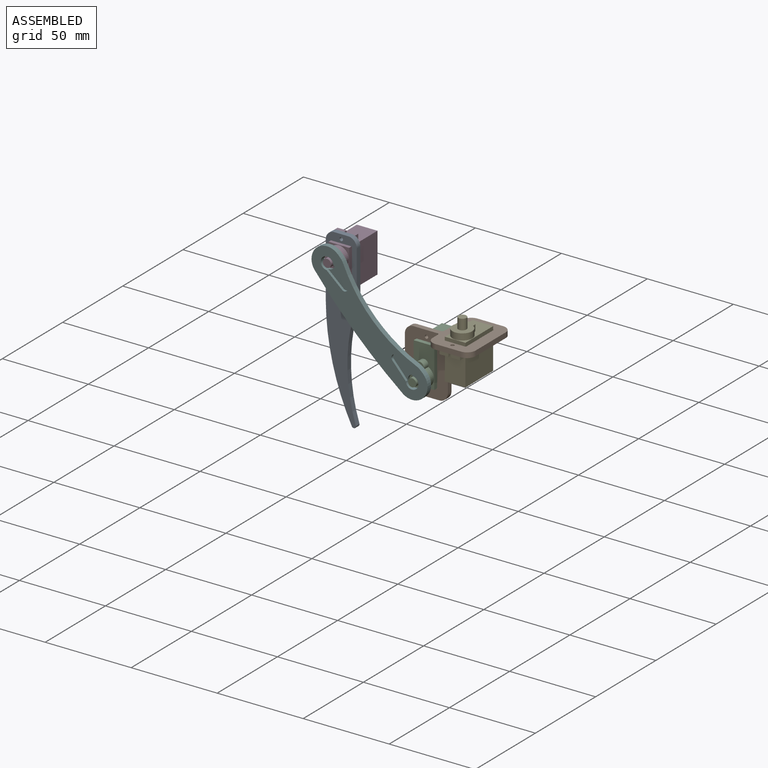
[diagram: assembled view]
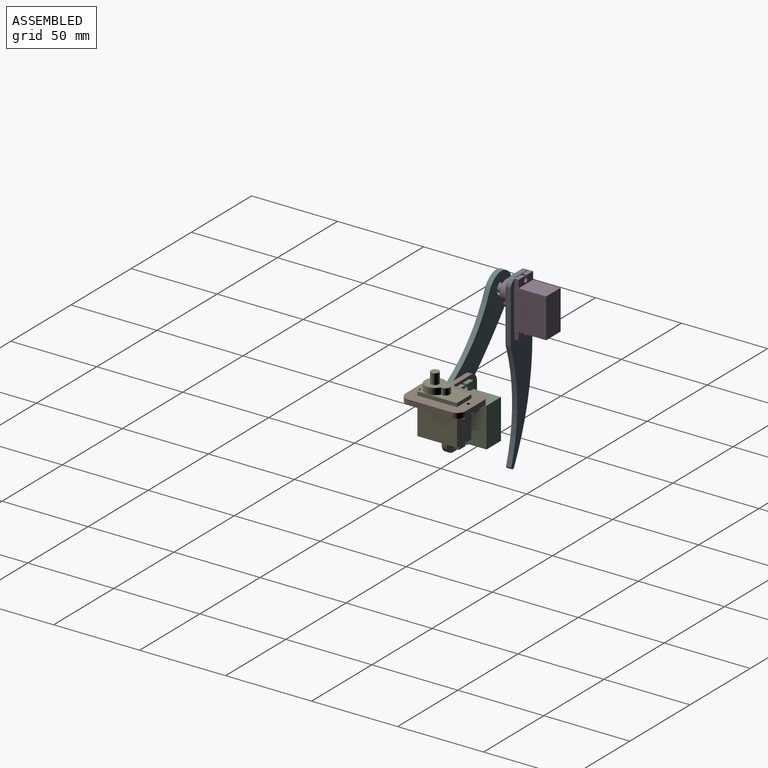
[diagram: assembled view, second angle]
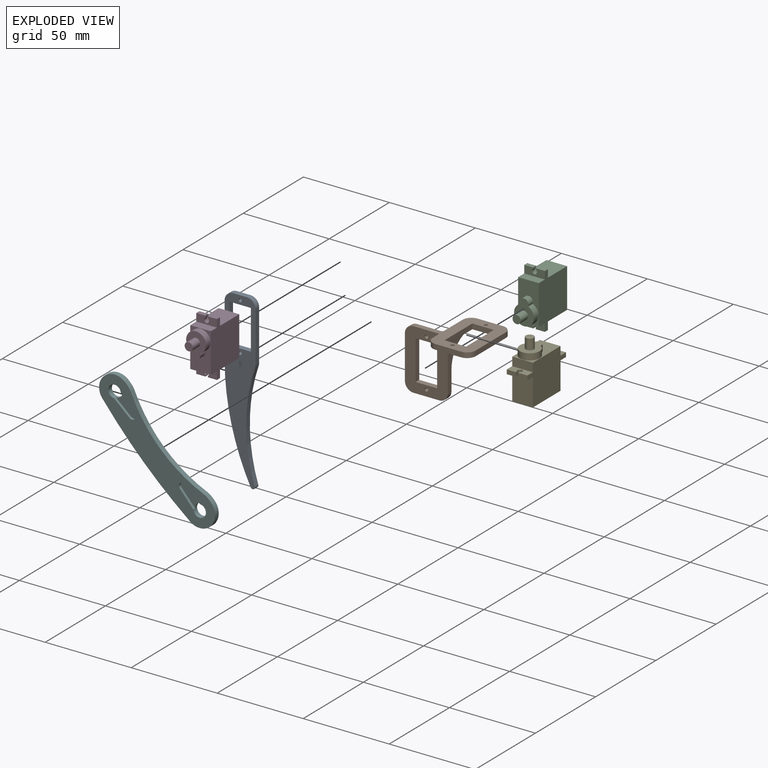
[diagram: exploded view]
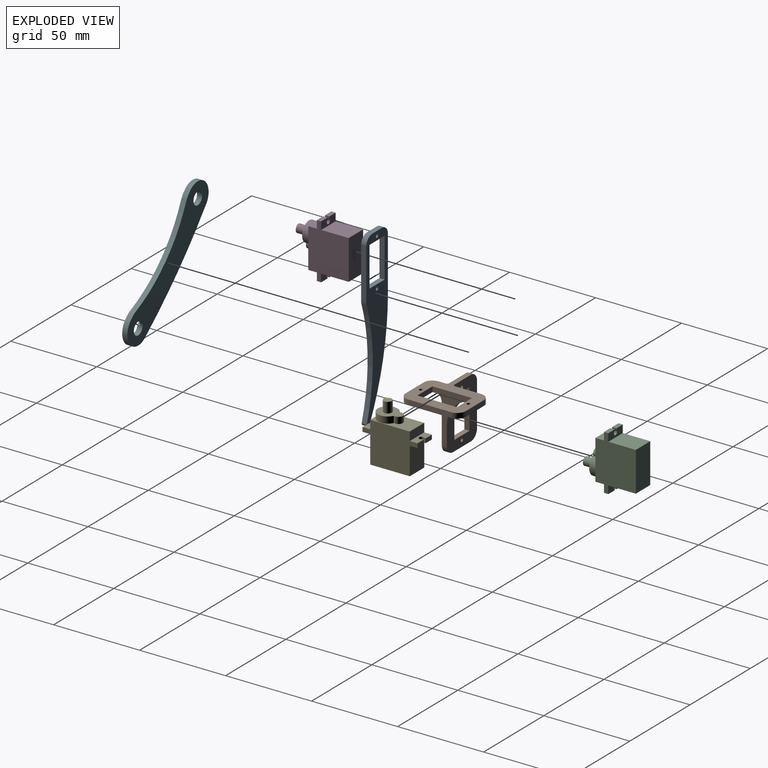
[diagram: exploded view, second angle]
ASSEMBLY  parts=6 mates=5
PART A: 20 faces, bbox 100x18x3 mm
  f0: plane 23x3mm, normal (0,1,0), area 69mm2, adj f1,f11,f12,f13
  f1: plane 12.5x3mm, normal (1,0,0), area 37.5mm2, adj f0,f2,f12,f13
  f2: plane 23x3mm, normal (0,-1,0), area 69mm2, adj f1,f11,f12,f13
  f3: cylinder r=100mm len=62.62mm, axis (0,0,-1), area 191.1mm2, adj f12,f13,f14,f19
  f4: plane 29.18x3mm, normal (0,-1,0), area 87.5mm2, adj f12,f13,f14,f15
  f5: plane 8x3mm, normal (1,0,0), area 24mm2, adj f12,f13,f15,f16
  f6: plane 31.91x3mm, normal (0,1,0), area 95.7mm2, adj f12,f13,f16,f17
  f7: cylinder r=140mm len=62.38mm, axis (0,0,-1), area 194.3mm2, adj f12,f13,f17,f18
  f8: plane 3x0.02mm, normal (-1,0,0), area 0.1mm2, adj f12,f13,f18,f19
  f9: cylinder r=1mm len=3mm, axis (0,0,-1), area 18.8mm2, adj f12,f13
  f10: cylinder r=1mm len=3mm, axis (0,0,-1), area 18.8mm2, adj f12,f13
  f11: plane 12.5x3mm, normal (-1,0,0), area 37.5mm2, adj f0,f2,f12,f13
  f12: plane 100x18mm, normal (0,0,1), area 935.1mm2, adj f0,f1,f2,f3,f4,f5,f6,f7
  f13: plane 100x18mm, normal (0,0,-1), area 935.1mm2, adj f0,f1,f2,f3,f4,f5,f6,f7
  f14: cylinder r=5mm len=3mm, axis (0,0,-1), area 4.8mm2, adj f3,f4,f12,f13
  f15: cylinder r=5mm len=5mm, axis (0,0,1), area 23.6mm2, adj f4,f5,f12,f13
  f16: cylinder r=5mm len=5mm, axis (0,0,-1), area 23.6mm2, adj f5,f6,f12,f13
  f17: cylinder r=5mm len=3mm, axis (0,0,-1), area 0.1mm2, adj f6,f7,f12,f13
  f18: cylinder r=1.24mm len=3mm, axis (0,0,-1), area 4.1mm2, adj f7,f8,f12,f13
  f19: cylinder r=1.24mm len=3mm, axis (0,0,-1), area 7mm2, adj f3,f8,f12,f13
PART B: 36 faces, bbox 35x45x35 mm
  f0: plane 35x25mm, normal (1,0,0), area 449.5mm2, adj f14,f15,f16,f17,f18,f19,f20,f21
  f1: plane 35x25mm, normal (-1,0,0), area 518.2mm2, adj f14,f15,f16,f17,f18,f19,f20,f21
  f2: plane 15.25x12.4mm, normal (0,-1,0), area 83.1mm2, adj f13,f14,f27,f31,f34
  f3: plane 15x3mm, normal (1,0,0), area 45mm2, adj f13,f14,f27,f28
  f4: plane 25x3mm, normal (0,1,0), area 75mm2, adj f13,f14,f28,f29
  f5: plane 15x3mm, normal (-1,0,0), area 45mm2, adj f13,f14,f29,f30
  f6: plane 23x3mm, normal (0,1,0), area 69mm2, adj f7,f9,f14,f33
  f7: plane 12.5x3mm, normal (1,0,0), area 37.5mm2, adj f6,f8,f13,f14
  f8: plane 23x3mm, normal (0,-1,0), area 69mm2, adj f7,f9,f13,f14
  f9: plane 12.5x3mm, normal (-1,0,0), area 37.5mm2, adj f6,f8,f13,f14
  f10: cylinder r=1mm len=3mm, axis (0,0,-1), area 18.8mm2, adj f13,f14
  f11: cylinder r=1mm len=3mm, axis (0,0,-1), area 18.8mm2, adj f13,f14
  f12: plane 4.39x4.25mm, normal (0,-1,0), area 14.1mm2, adj f13,f14,f30,f32,f35
  f13: plane 35x25mm, normal (0,0,1), area 416mm2, adj f2,f3,f4,f5,f7,f8,f9,f10
  f14: plane 40x35mm, normal (0,0,-1), area 605.4mm2, adj f0,f1,f2,f3,f4,f5,f6,f7
  f15: plane 25.75x13.79mm, normal (0,1,0), area 116mm2, adj f0,f1,f26,f33,f34,f35
  f16: plane 25x3mm, normal (0,-1,0), area 75mm2, adj f0,f1,f24,f25
  f17: plane 15x3mm, normal (0,0,1), area 45mm2, adj f0,f1,f25,f26
  f18: plane 23x3mm, normal (0,-1,0), area 69mm2, adj f0,f1,f19,f21,f31,f32
  f19: plane 12.5x3mm, normal (0,0,-1), area 37.5mm2, adj f0,f1,f18,f20
  f20: plane 23x3mm, normal (0,1,0), area 69mm2, adj f0,f1,f19,f21
  f21: plane 12.5x3mm, normal (0,0,1), area 37.5mm2, adj f0,f1,f18,f20
  f22: cylinder r=1mm len=3mm, axis (1,0,0), area 18.8mm2, adj f0,f1
  f23: cylinder r=1mm len=3mm, axis (1,0,0), area 18.8mm2, adj f0,f1
  f24: cylinder r=5mm len=5mm, axis (1,0,0), area 23.6mm2, adj f0,f1,f14,f16
  f25: cylinder r=5mm len=5mm, axis (-1,0,0), area 23.6mm2, adj f0,f1,f16,f17
  f26: cylinder r=5mm len=5mm, axis (1,0,0), area 23.6mm2, adj f0,f1,f15,f17
  f27: cylinder r=5mm len=5mm, axis (0,0,1), area 23.6mm2, adj f2,f3,f13,f14
  f28: cylinder r=5mm len=5mm, axis (0,0,-1), area 23.6mm2, adj f3,f4,f13,f14
  f29: cylinder r=5mm len=5mm, axis (0,0,1), area 23.6mm2, adj f4,f5,f13,f14
  f30: cylinder r=5mm len=5mm, axis (0,0,-1), area 23.6mm2, adj f5,f12,f13,f14
  f31: cylinder r=1.25mm len=18.5mm, axis (0,0,-1), area 29.9mm2, adj f0,f2,f14,f18,f34
  f32: cylinder r=1.25mm len=7.5mm, axis (0,0,1), area 11.4mm2, adj f1,f12,f14,f18,f35
  f33: cylinder r=1.25mm len=23mm, axis (-1,0,0), area 35.4mm2, adj f6,f15,f34,f35
  f34: cylinder r=15.5mm len=15.5mm, axis (0,1,0), area 127.8mm2, adj f0,f2,f13,f15,f31,f33
  f35: cylinder r=4.5mm len=7.5mm, axis (0,-1,0), area 38.6mm2, adj f1,f12,f13,f15,f32,f33
PART C: 27 faces, bbox 32x12x33.4 mm
  f0: plane 12x4.5mm, normal (0,0,1), area 47.1mm2, adj f3,f4,f5,f6,f7,f8,f9,f17
  f1: plane 12x4.5mm, normal (0,0,-1), area 47.1mm2, adj f3,f4,f5,f6,f7,f8,f9,f20
  f2: plane 5.25x2.5mm, normal (1,0,0), area 13.1mm2, adj f3,f13,f14,f15
  f3: plane 32x23.5mm, normal (0,1,0), area 563mm2, adj f0,f1,f2,f4,f14,f15,f16,f17
  f4: plane 5.25x2.5mm, normal (-1,0,0), area 13.1mm2, adj f0,f1,f3,f5
  f5: plane 2.5x0.78mm, normal (0,-1,0), area 1.9mm2, adj f0,f1,f4,f6
  f6: cylinder r=1.38mm len=2.75mm, axis (0,0,-1), area 17.6mm2, adj f0,f1,f5,f7
  f7: plane 2.5x0.78mm, normal (0,1,0), area 1.9mm2, adj f0,f1,f6,f8
  f8: plane 5.25x2.5mm, normal (-1,0,0), area 13.1mm2, adj f0,f1,f7,f9
  f9: plane 32x23.5mm, normal (0,-1,0), area 563mm2, adj f0,f1,f8,f10,f14,f15,f16,f17
  f10: plane 5.25x2.5mm, normal (1,0,0), area 13.1mm2, adj f9,f11,f14,f15
  f11: plane 2.5x1.17mm, normal (0,1,0), area 2.9mm2, adj f10,f12,f14,f15
  f12: cylinder r=1.38mm len=2.75mm, axis (0,0,-1), area 17.6mm2, adj f11,f13,f14,f15
  f13: plane 2.5x1.17mm, normal (0,-1,0), area 2.9mm2, adj f2,f12,f14,f15
  f14: plane 12x4.5mm, normal (0,0,1), area 46.5mm2, adj f2,f3,f9,f10,f11,f12,f13,f18
  f15: plane 12x4.5mm, normal (0,0,-1), area 46.5mm2, adj f2,f3,f9,f10,f11,f12,f13,f19
  f16: plane 23x12mm, normal (0,0,1), area 157.5mm2, adj f3,f9,f17,f18,f23,f24
  f17: plane 12x5mm, normal (-1,0,0), area 60mm2, adj f0,f3,f9,f16
  f18: plane 12x5mm, normal (1,0,0), area 60mm2, adj f3,f9,f14,f16
  f19: plane 16x12mm, normal (1,0,0), area 192mm2, adj f3,f9,f15,f21
  f20: plane 16x12mm, normal (-1,0,0), area 192mm2, adj f1,f3,f9,f21
  f21: plane 23x12mm, normal (0,0,-1), area 276mm2, adj f3,f9,f19,f20
  f22: plane 14.55x11.55mm, normal (0,0,1), area 100.8mm2, adj f23,f24,f25
  f23: cylinder r=5.77mm len=11.55mm, axis (0,0,-1), area 117mm2, adj f16,f22,f24
  f24: cylinder r=2.62mm len=5.25mm, axis (0,0,-1), area 38mm2, adj f16,f22,f23
  f25: cylinder r=2.38mm len=6.1mm, axis (0,0,-1), area 91mm2, adj f22,f26
  f26: plane 4.75x4.75mm, normal (0,0,1), area 17.7mm2, adj f25
PART D: same geometry as C
PART E: same geometry as C
PART F: 22 faces, bbox 88x20x3 mm
  f0: plane 12.01x1.5mm, normal (-0.06,1,0), area 18.1mm2, adj f1,f13,f14,f20
  f1: cylinder r=3.62mm len=7.25mm, axis (0,0,-1), area 59mm2, adj f0,f2,f14,f15,f20
  f2: plane 12.01x1.5mm, normal (-0.06,-1,0), area 18.1mm2, adj f1,f13,f14,f20
  f3: plane 3x1.51mm, normal (0,1,0), area 4.5mm2, adj f4,f14,f15,f17
  f4: cylinder r=9mm len=17.99mm, axis (0,0,-1), area 83.8mm2, adj f3,f14,f15,f18
  f5: cylinder r=300mm len=69.07mm, axis (0,0,-1), area 207.7mm2, adj f14,f15,f18,f19
  f6: cylinder r=9mm len=17.99mm, axis (0,0,-1), area 83.8mm2, adj f7,f14,f15,f19
  f7: plane 3x1.51mm, normal (0,1,0), area 4.5mm2, adj f6,f14,f15,f16
  f8: plane 12.01x1.5mm, normal (0.06,-1,0), area 18.1mm2, adj f9,f12,f14,f21
  f9: cylinder r=3.62mm len=7.25mm, axis (0,0,-1), area 59mm2, adj f8,f10,f14,f15,f21
  f10: plane 12.01x1.5mm, normal (0.06,1,0), area 18.1mm2, adj f9,f12,f14,f21
  f11: cylinder r=80mm len=59.54mm, axis (0,0,-1), area 183mm2, adj f14,f15,f16,f17
  f12: cylinder r=2mm len=3.99mm, axis (0,0,-1), area 9mm2, adj f8,f10,f14,f21
  f13: cylinder r=2mm len=3.99mm, axis (0,0,-1), area 9mm2, adj f0,f2,f14,f20
  f14: plane 88x20.05mm, normal (0,0,1), area 1137.4mm2, adj f0,f1,f2,f3,f4,f5,f6,f7
  f15: plane 88x20.05mm, normal (0,0,-1), area 1253.4mm2, adj f1,f3,f4,f5,f6,f7,f9,f11
  f16: cylinder r=10mm len=3.72mm, axis (0,0,-1), area 11.4mm2, adj f7,f11,f14,f15
  f17: cylinder r=10mm len=3.72mm, axis (0,0,-1), area 11.4mm2, adj f3,f11,f14,f15
  f18: cylinder r=10mm len=3mm, axis (0,0,1), area 2.4mm2, adj f4,f5,f14,f15
  f19: cylinder r=10mm len=3mm, axis (0,0,1), area 2.4mm2, adj f5,f6,f14,f15
  f20: plane 13.89x5.5mm, normal (0,0,1), area 58mm2, adj f0,f1,f2,f13
  f21: plane 13.89x5.5mm, normal (0,0,1), area 58mm2, adj f8,f9,f10,f12
PLACE A rot(axis=(0.58,-0.58,0.58),120deg) t=(-72.65,-18.81,-11.24)mm
PLACE B rot(axis=(-0.71,-0.71,0),180deg) t=(-3.15,-14.81,1.65)mm
PLACE C rot(axis=(0.58,0.58,-0.58),120deg) t=(-23.15,-16.31,-15.85)mm
PLACE D rot(axis=(0.58,-0.58,0.58),120deg) t=(-72.65,-16.31,22.26)mm
PLACE E rot(axis=(0,0,-1),90deg) t=(-3.15,-14.81,-3.85)mm
PLACE F rot(axis=(0.86,0.36,-0.36),98.4deg) t=(-47.9,-30.66,3.21)mm
MATE fastened D.f6 <-> A.f10  axis (0,1,0) through (-72.65,-18.81,8.38)mm
MATE fastened C.f6 <-> B.f23  axis (0,1,0) through (-23.15,-18.81,-1.97)mm
MATE revolute D.f23 <-> F.f1  axis (0,-1,0) through (-72.65,-33.66,27.95)mm
MATE fastened B.f11 <-> E.f12  axis (0,0,-1) through (-3.15,-28.69,-1.35)mm
MATE revolute C.f23 <-> F.f6  axis (0,-1,0) through (-23.15,-33.66,-21.54)mm
